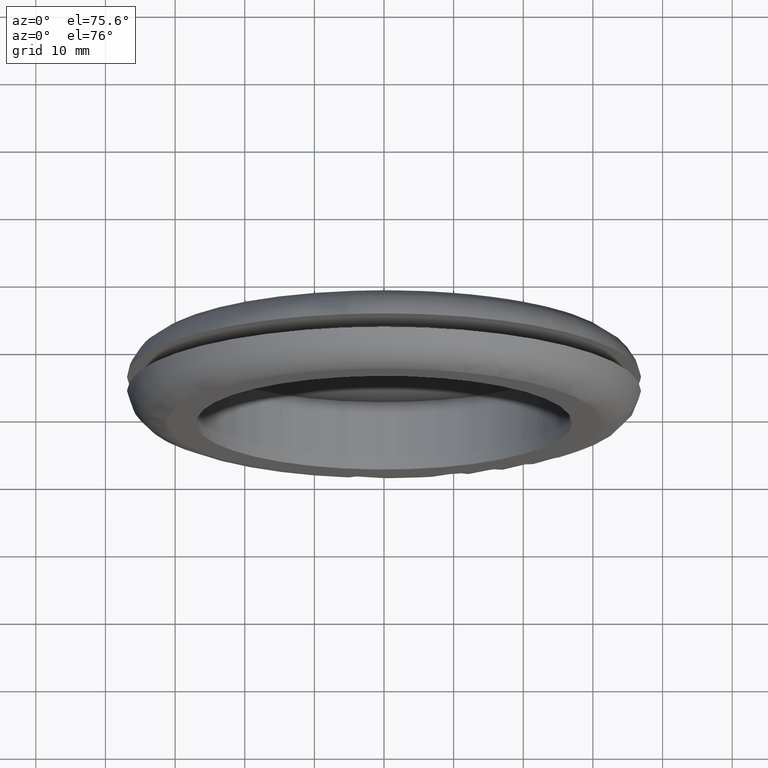
[diagram: clean part render]
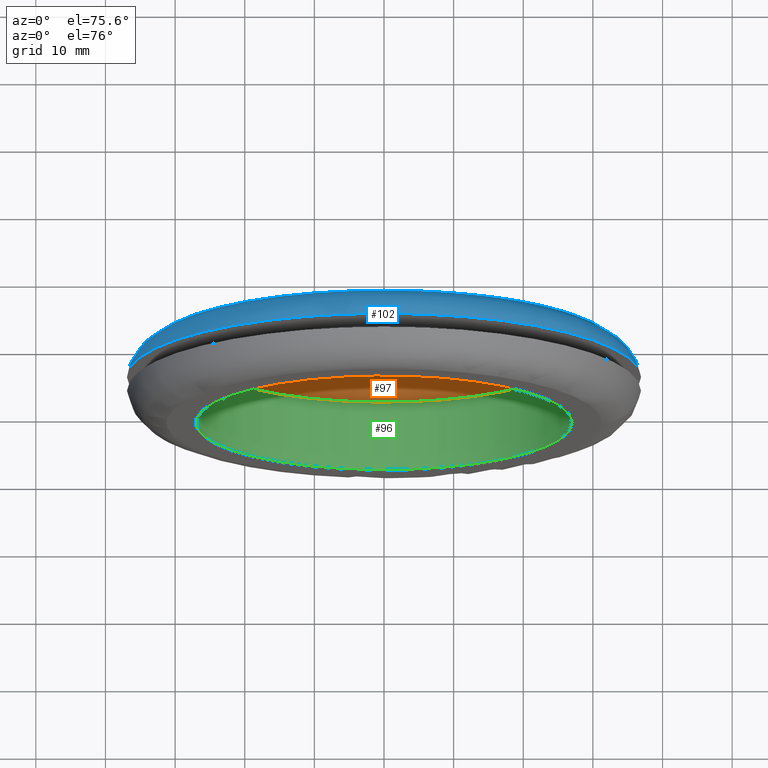
[diagram: same view with three faces highlighted in distinct colors, each labeled with its STEP entity id]
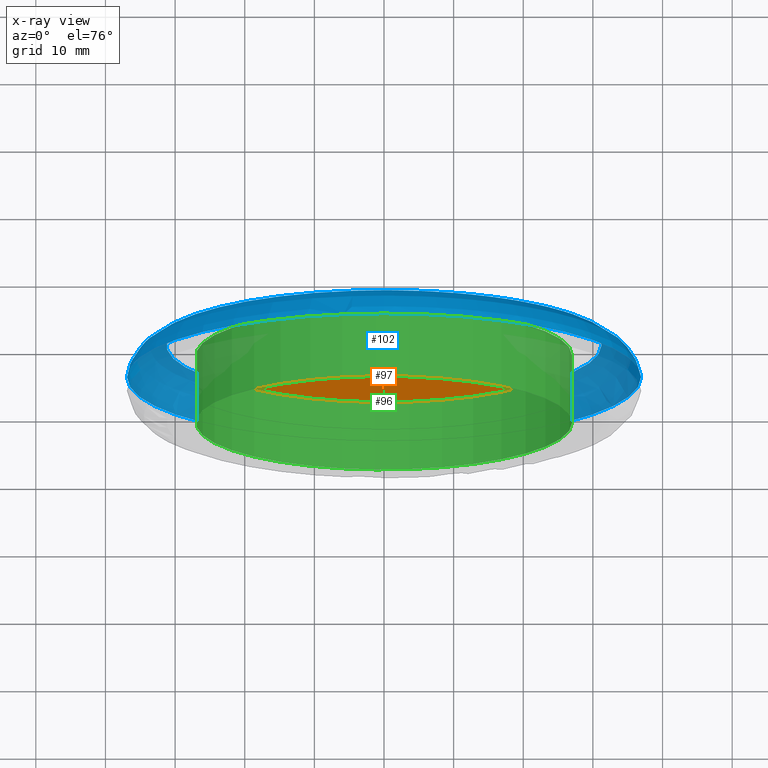
[diagram: x-ray of the same camera — body ghosted, the three highlighted faces saturated]
A machine part, auxiliary view with three faces highlighted in distinct colors.
The next image is the same camera in x-ray (body ghosted, the three faces saturated) — at least one of them is partly hidden behind the body in this view.
Their STEP definitions:

[orange] entity #97 — the highlighted planar face has unit normal (0, 1, 0).
#17=PLANE('',#110);
#30=FACE_OUTER_BOUND('',#40,.T.);
#40=EDGE_LOOP('',(#80));
#54=CIRCLE('',#108,27.);
#62=VERTEX_POINT('',#162);
#70=EDGE_CURVE('',#62,#62,#54,.T.);
#80=ORIENTED_EDGE('',*,*,#70,.F.);
#97=ADVANCED_FACE('',(#30),#17,.F.);
#108=AXIS2_PLACEMENT_3D('',#163,#128,#129);
#110=AXIS2_PLACEMENT_3D('',#166,#132,#133);
#128=DIRECTION('center_axis',(0.,1.,0.));
#129=DIRECTION('ref_axis',(-1.,0.,0.));
#132=DIRECTION('center_axis',(0.,1.,0.));
#133=DIRECTION('ref_axis',(0.,0.,1.));
#162=CARTESIAN_POINT('',(27.,10.,3.30654635769785E-15));
#163=CARTESIAN_POINT('Origin',(0.,10.,0.));
#166=CARTESIAN_POINT('Origin',(-2.75545529808154E-16,10.,0.));

[blue] entity #102 — the highlighted toroidal blend (fillet) surface has major radius 31.25 mm and minor (blend) radius 5.75 mm.
#15=TOROIDAL_SURFACE('',#120,31.25,5.75);
#26=FACE_BOUND('',#49,.T.);
#35=FACE_OUTER_BOUND('',#48,.T.);
#48=EDGE_LOOP('',(#88));
#49=EDGE_LOOP('',(#89));
#59=CIRCLE('',#117,36.9123758264531);
#60=CIRCLE('',#119,31.25);
#67=VERTEX_POINT('',#176);
#68=VERTEX_POINT('',#179);
#75=EDGE_CURVE('',#67,#67,#59,.T.);
#76=EDGE_CURVE('',#68,#68,#60,.T.);
#88=ORIENTED_EDGE('',*,*,#76,.T.);
#89=ORIENTED_EDGE('',*,*,#75,.T.);
#102=ADVANCED_FACE('',(#35,#26),#15,.T.);
#117=AXIS2_PLACEMENT_3D('',#177,#146,#147);
#119=AXIS2_PLACEMENT_3D('',#180,#150,#151);
#120=AXIS2_PLACEMENT_3D('',#181,#152,#153);
#146=DIRECTION('center_axis',(0.,1.,0.));
#147=DIRECTION('ref_axis',(0.,0.,-1.));
#150=DIRECTION('center_axis',(0.,-1.,0.));
#151=DIRECTION('ref_axis',(1.,0.,0.));
#152=DIRECTION('center_axis',(0.,-1.,0.));
#153=DIRECTION('ref_axis',(0.,0.,-1.));
#176=CARTESIAN_POINT('',(36.9123758264531,6.75,0.));
#177=CARTESIAN_POINT('Origin',(0.,6.75,0.));
#179=CARTESIAN_POINT('',(31.25,11.5,0.));
#180=CARTESIAN_POINT('Origin',(0.,11.5,0.));
#181=CARTESIAN_POINT('Origin',(0.,5.75,0.));

[green] entity #96 — the highlighted cylindrical surface (bore or boss wall) has radius 27 mm, axis along (0, 1, 0).
#22=FACE_BOUND('',#39,.T.);
#29=FACE_OUTER_BOUND('',#38,.T.);
#38=EDGE_LOOP('',(#78));
#39=EDGE_LOOP('',(#79));
#54=CIRCLE('',#108,27.);
#55=CIRCLE('',#109,27.);
#62=VERTEX_POINT('',#162);
#63=VERTEX_POINT('',#164);
#70=EDGE_CURVE('',#62,#62,#54,.T.);
#71=EDGE_CURVE('',#63,#63,#55,.T.);
#78=ORIENTED_EDGE('',*,*,#70,.T.);
#79=ORIENTED_EDGE('',*,*,#71,.F.);
#94=CYLINDRICAL_SURFACE('',#107,27.);
#96=ADVANCED_FACE('',(#29,#22),#94,.F.);
#107=AXIS2_PLACEMENT_3D('',#161,#126,#127);
#108=AXIS2_PLACEMENT_3D('',#163,#128,#129);
#109=AXIS2_PLACEMENT_3D('',#165,#130,#131);
#126=DIRECTION('center_axis',(0.,1.,0.));
#127=DIRECTION('ref_axis',(-1.,0.,0.));
#128=DIRECTION('center_axis',(0.,1.,0.));
#129=DIRECTION('ref_axis',(-1.,0.,0.));
#130=DIRECTION('center_axis',(0.,1.,0.));
#131=DIRECTION('ref_axis',(-1.,0.,0.));
#161=CARTESIAN_POINT('Origin',(0.,0.,0.));
#162=CARTESIAN_POINT('',(27.,10.,3.30654635769785E-15));
#163=CARTESIAN_POINT('Origin',(0.,10.,0.));
#164=CARTESIAN_POINT('',(27.,0.,3.30654635769785E-15));
#165=CARTESIAN_POINT('Origin',(0.,0.,0.));